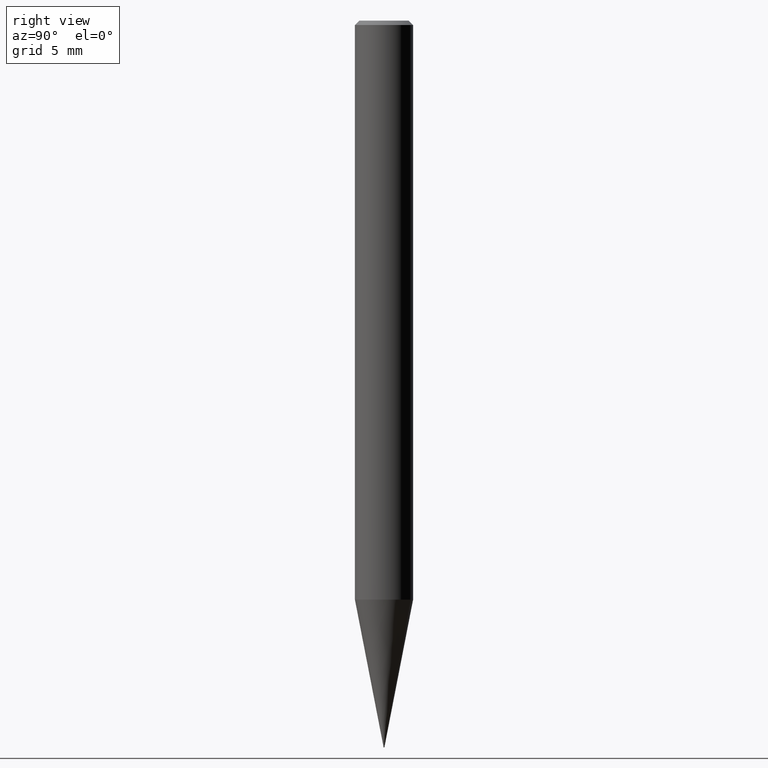
[diagram: clean part render]
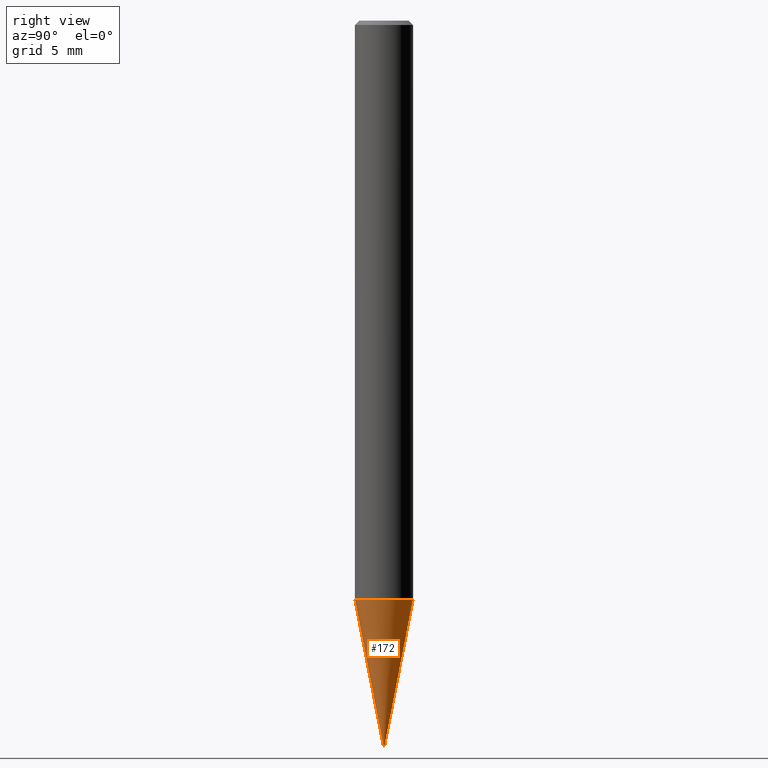
[diagram: same view with one face highlighted and labeled with its STEP entity id]
A machine part, right view. The second image highlights one B-rep face of the part: STEP entity #172.
In plain terms, the highlighted conical surface has half-angle 11 deg.
Its self-contained STEP definition (entity closure, byte-faithful):
#96=VERTEX_POINT('',#221);
#108=EDGE_CURVE('',#96,#176,#233,.T.);
#114=EDGE_CURVE('',#140,#122,#241,.T.);
#122=VERTEX_POINT('',#250);
#130=EDGE_CURVE('',#96,#122,#261,.T.);
#140=VERTEX_POINT('',#272);
#172=ADVANCED_FACE('',(#306),#307,.T.);
#176=VERTEX_POINT('',#313);
#182=EDGE_CURVE('',#176,#140,#320,.T.);
#221=CARTESIAN_POINT('',(0.0,1.99995,-39.837));
#233=LINE('',#373,#374);
#241=LINE('',#383,#384);
#250=CARTESIAN_POINT('',(2.44915147732706E-016,-1.99995,-39.837));
#261=CIRCLE('',#407,1.99995);
#272=CARTESIAN_POINT('',(4.89230238352041E-018,-0.03995,-49.92));
#306=FACE_OUTER_BOUND('',#464,.T.);
#307=CONICAL_SURFACE('',#465,1.01995,0.191992271145669);
#313=CARTESIAN_POINT('',(0.0,0.03995,-49.92));
#320=CIRCLE('',#479,0.03995);
#373=CARTESIAN_POINT('',(-1.24903725058113E-016,1.01995,-44.8785));
#374=VECTOR('',#507,1.0);
#383=CARTESIAN_POINT('',(1.24903725058113E-016,-1.01995,-44.8785));
#384=VECTOR('',#520,1.0);
#407=AXIS2_PLACEMENT_3D('',#555,#556,#557);
#464=EDGE_LOOP('',(#602,#603,#604,#605));
#465=AXIS2_PLACEMENT_3D('',#606,#607,#608);
#479=AXIS2_PLACEMENT_3D('',#625,#626,#627);
#507=DIRECTION('',(2.3367318496573E-017,-0.190814937580851,-0.981626028381489));
#520=DIRECTION('',(2.3367318496573E-017,-0.190814937580851,0.981626028381489));
#555=CARTESIAN_POINT('',(0.0,0.0,-39.837));
#556=DIRECTION('',(0.0,0.0,-1.0));
#557=DIRECTION('',(0.0,1.0,0.0));
#602=ORIENTED_EDGE('',*,*,#108,.F.);
#603=ORIENTED_EDGE('',*,*,#130,.T.);
#604=ORIENTED_EDGE('',*,*,#114,.F.);
#605=ORIENTED_EDGE('',*,*,#182,.F.);
#606=CARTESIAN_POINT('',(0.0,0.0,-44.8785));
#607=DIRECTION('',(-0.0,-0.0,1.0));
#608=DIRECTION('',(0.0,1.0,0.0));
#625=CARTESIAN_POINT('',(0.0,0.0,-49.92));
#626=DIRECTION('',(0.0,0.0,-1.0));
#627=DIRECTION('',(0.0,1.0,0.0));